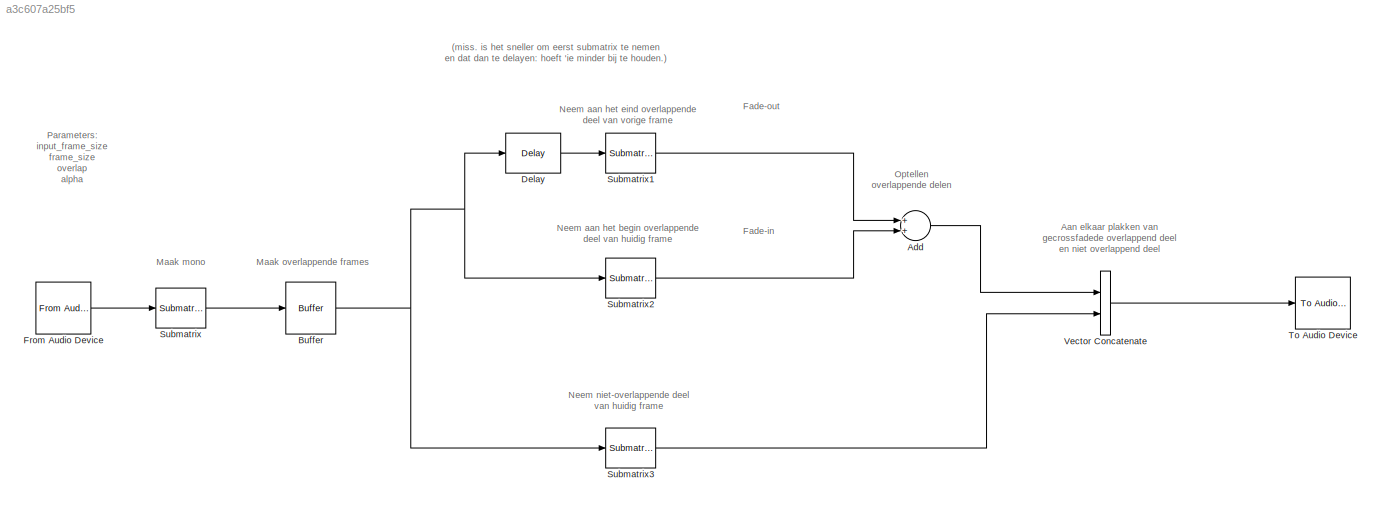
MODEL slx_a3c607a25bf5
KIND model
CONFIG InitFcn = input_frame_size = 4096;\nframe_size = 4096;\noverlap = 0.5;\nalpha = 1.5;\n\nk = round(frame_size - alpha*(1-overlap)*frame_size);
BLOCK [Sum] Add
  InputSameDT = off
  Inputs = 2
  OutDataTypeStr = Inherit: Inherit via internal rule
  Ports = [2, 1]
  SaturateOnIntegerOverflow = off
BLOCK [Buffer] Buffer
  N = frame_size
  TreatMby1Signals = One channel
  V = round(frame_size*overlap)
BLOCK [Reference] Delay  REF=dspsigops/Delay
  InputProcessing = Columns as channels (frame based)
  Ports = [1, 1]
  SourceBlock = dspsigops/Delay
  SourceType = Delay
  UserDataPersistent = on
  delay = 1
  dif_ic_for_ch = off
  dif_ic_for_dly = off
  dly_unit = Frames
  ic = 0
  ic_detail = off
  reset_popup = None
BLOCK [Reference] From Audio Device  REF=dspsrcs4/From Audio
Device
  Ports = [0, 1]
  SourceBlock = dspsrcs4/From Audio\nDevice
  SourceType = From Audio Device
  autoBufferSize = on
  bufferSize = 4096
  deviceDatatype = Determine from output data type
  deviceName = Default
  frameSize = input_frame_size
  numChannels = 1
  outputDatatype = single
  queueDuration = 0
  sampleRate = 44100
BLOCK [Reference] Submatrix  REF=dspmtrx3/Submatrix
  ColEndIndex = 1
  ColEndMode = Last
  ColSpan = One column
  ColStartIndex = 1
  ColStartMode = First
  Ports = [1, 1]
  RowEndIndex = 1
  RowEndMode = Last
  RowSpan = All rows
  RowStartIndex = 1
  RowStartMode = First
  SourceBlock = dspmtrx3/Submatrix
  SourceType = Submatrix
BLOCK [Reference] Submatrix1  REF=dspmtrx3/Submatrix
  ColEndIndex = 1
  ColEndMode = Last
  ColSpan = All columns
  ColStartIndex = k
  ColStartMode = Offset from last
  Ports = [1, 1]
  RowEndIndex = 1
  RowEndMode = Last
  RowSpan = Range of rows
  RowStartIndex = k-1
  RowStartMode = Offset from last
  SourceBlock = dspmtrx3/Submatrix
  SourceType = Submatrix
BLOCK [Reference] Submatrix2  REF=dspmtrx3/Submatrix
  ColEndIndex = 1
  ColEndMode = Last
  ColSpan = All columns
  ColStartIndex = k
  ColStartMode = Offset from last
  Ports = [1, 1]
  RowEndIndex = k
  RowEndMode = Index
  RowSpan = Range of rows
  RowStartIndex = 1
  RowStartMode = First
  SourceBlock = dspmtrx3/Submatrix
  SourceType = Submatrix
BLOCK [Reference] Submatrix3  REF=dspmtrx3/Submatrix
  ColEndIndex = 1
  ColEndMode = Last
  ColSpan = All columns
  ColStartIndex = k
  ColStartMode = Offset from last
  Ports = [1, 1]
  RowEndIndex = k
  RowEndMode = Offset from last
  RowSpan = Range of rows
  RowStartIndex = k+1
  RowStartMode = Index
  SourceBlock = dspmtrx3/Submatrix
  SourceType = Submatrix
BLOCK [Reference] To Audio Device  REF=dspsnks4/To Audio
Device
  Ports = [1]
  SourceBlock = dspsnks4/To Audio\nDevice
  SourceType = To Audio Device
  autoBufferSize = on
  bufferSize = 4096
  deviceDatatype = Determine from input data type
  deviceName = Default
  inheritSampleRate = on
  queueDuration = 0
  sampleRate = 44100
BLOCK [Concatenate] Vector Concatenate
  Mode = Multidimensional array
  Ports = [2, 1]
ANNOTATION (root): (miss. is het sneller om eerst submatrix te nemen en dat dan te delayen: hoeft 'ie minder bij te houden.)
ANNOTATION (root): Aan elkaar plakken van gecrossfadede overlappend deel en niet overlappend deel
ANNOTATION (root): Fade-in
ANNOTATION (root): Fade-out
ANNOTATION (root): Maak mono
ANNOTATION (root): Maak overlappende frames
ANNOTATION (root): Neem aan het begin overlappende deel van huidig frame
ANNOTATION (root): Neem aan het eind overlappende deel van vorige frame
ANNOTATION (root): Neem niet-overlappende deel van huidig frame
ANNOTATION (root): Optellen overlappende delen
ANNOTATION (root): Parameters: input_frame_size frame_size overlap alpha aan te passen in Model Properties (klik rechts) >> Callbacks >> InitFcn k is het aantal overlappende samples per frame en wordt aangemaakt op basis van voorgaande parameters.
LINE Add:1 -> Vector Concatenate:1
NET Buffer:1 -> Delay:1, Submatrix2:1, Submatrix3:1
LINE Delay:1 -> Submatrix1:1
LINE From Audio Device:1 -> Submatrix:1
LINE Submatrix1:1 -> Add:1
LINE Submatrix2:1 -> Add:2
LINE Submatrix3:1 -> Vector Concatenate:2
LINE Submatrix:1 -> Buffer:1
LINE Vector Concatenate:1 -> To Audio Device:1
note: NET lines group one-source signal fan-out (src -> all destinations, sorted); 1:1 wires keep LINE
